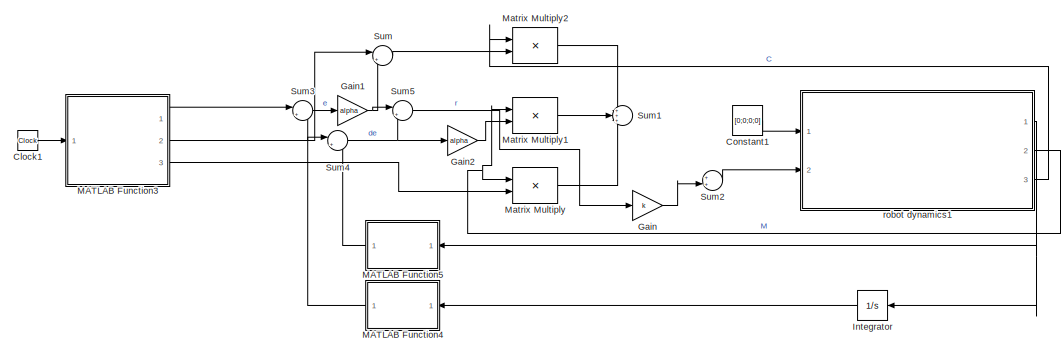
[diagram: root canvas - part 1/2, top left region]
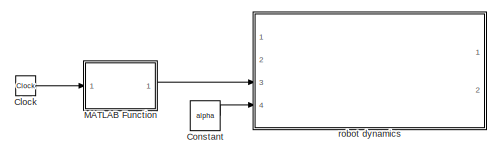
[diagram: root canvas - part 2/2, bottom right region]
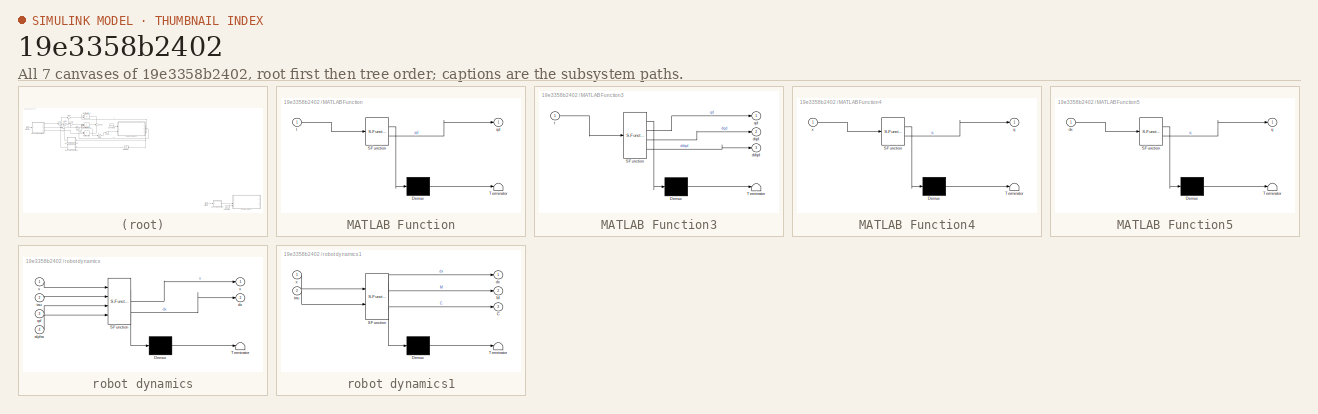
[diagram: thumbnail index - all 7 canvases of the model, root first then tree order]
MODEL slx_19e3358b2402
KIND model
CONFIG AbsTol = auto
CONFIG EnableMultiTasking = off
CONFIG FixedStep = 1e-3
CONFIG InitFcn = acm_init
CONFIG MaxStep = auto
CONFIG MinStep = auto
CONFIG RelTol = 1e-3
CONFIG SampleTimeConstraint = Unconstrained
CONFIG Solver = ode4
CONFIG SolverName = ode4
CONFIG StartTime = 0.0
CONFIG StopTime = 30
BLOCK [Clock] Clock
BLOCK [Clock] Clock1
  DisplayTime = on
BLOCK [Constant] Constant
  Value = alpha
BLOCK [Constant] Constant1
  Value = [0;0;0;0]
BLOCK [Gain] Gain
  Gain = k
BLOCK [Gain] Gain1
  Gain = alpha
BLOCK [Gain] Gain2
  Gain = alpha
BLOCK [Integrator] Integrator
  Ports = [1, 1]
BLOCK [SubSystem] MATLAB Function
  ErrorFcn = Stateflow.Translate.translate
  PermitHierarchicalResolution = ExplicitOnly
  Ports = [1, 1]
  RequestExecContextInheritance = off
  SFBlockType = MATLAB Function
  TreatAsAtomicUnit = on
BLOCK [Demux] MATLAB Function/ Demux 
  Outputs = 1
  Ports = [1, 1]
BLOCK [S-Function] MATLAB Function/ SFunction 
  EnableBusSupport = on
  FunctionName = sf_sfun
  PortCounts = [1 2]
  Ports = [1, 2]
  SFcnIsStateOwnerBlock = off
  SFunctionDeploymentMode = off
  Tag = Stateflow S-Function 2
BLOCK [Terminator] MATLAB Function/ Terminator 
BLOCK [Outport] MATLAB Function/qd
BLOCK [Inport] MATLAB Function/t
BLOCK [SubSystem] MATLAB Function3
  ErrorFcn = Stateflow.Translate.translate
  PermitHierarchicalResolution = ExplicitOnly
  Ports = [1, 3]
  RequestExecContextInheritance = off
  SFBlockType = MATLAB Function
  TreatAsAtomicUnit = on
BLOCK [Demux] MATLAB Function3/ Demux 
  Outputs = 1
  Ports = [1, 1]
BLOCK [S-Function] MATLAB Function3/ SFunction 
  EnableBusSupport = on
  FunctionName = sf_sfun
  PortCounts = [1 4]
  Ports = [1, 4]
  SFcnIsStateOwnerBlock = off
  SFunctionDeploymentMode = off
  Tag = Stateflow S-Function 5
BLOCK [Terminator] MATLAB Function3/ Terminator 
BLOCK [Outport] MATLAB Function3/ddqd
  Port = 3
BLOCK [Outport] MATLAB Function3/dqd
  Port = 2
BLOCK [Outport] MATLAB Function3/qd
BLOCK [Inport] MATLAB Function3/t
BLOCK [SubSystem] MATLAB Function4
  ErrorFcn = Stateflow.Translate.translate
  PermitHierarchicalResolution = ExplicitOnly
  Ports = [1, 1]
  RequestExecContextInheritance = off
  SFBlockType = MATLAB Function
  TreatAsAtomicUnit = on
BLOCK [Demux] MATLAB Function4/ Demux 
  Outputs = 1
  Ports = [1, 1]
BLOCK [S-Function] MATLAB Function4/ SFunction 
  EnableBusSupport = on
  FunctionName = sf_sfun
  PortCounts = [1 2]
  Ports = [1, 2]
  SFcnIsStateOwnerBlock = off
  SFunctionDeploymentMode = off
  Tag = Stateflow S-Function 6
BLOCK [Terminator] MATLAB Function4/ Terminator 
BLOCK [Outport] MATLAB Function4/q
BLOCK [Inport] MATLAB Function4/x
BLOCK [SubSystem] MATLAB Function5
  ErrorFcn = Stateflow.Translate.translate
  PermitHierarchicalResolution = ExplicitOnly
  Ports = [1, 1]
  RequestExecContextInheritance = off
  SFBlockType = MATLAB Function
  TreatAsAtomicUnit = on
BLOCK [Demux] MATLAB Function5/ Demux 
  Outputs = 1
  Ports = [1, 1]
BLOCK [S-Function] MATLAB Function5/ SFunction 
  EnableBusSupport = on
  FunctionName = sf_sfun
  PortCounts = [1 2]
  Ports = [1, 2]
  SFcnIsStateOwnerBlock = off
  SFunctionDeploymentMode = off
  Tag = Stateflow S-Function 7
BLOCK [Terminator] MATLAB Function5/ Terminator 
BLOCK [Inport] MATLAB Function5/dx
BLOCK [Outport] MATLAB Function5/q
BLOCK [Product] Matrix Multiply
  Multiplication = Matrix(*)
  Ports = [2, 1]
BLOCK [Product] Matrix Multiply1
  Multiplication = Matrix(*)
  Ports = [2, 1]
BLOCK [Product] Matrix Multiply2
  Multiplication = Matrix(*)
  Ports = [2, 1]
BLOCK [Sum] Sum
  Inputs = |++
  Ports = [2, 1]
BLOCK [Sum] Sum1
  Inputs = +++
  Ports = [3, 1]
BLOCK [Sum] Sum2
  Inputs = ++|
  Ports = [2, 1]
BLOCK [Sum] Sum3
  Inputs = |+-
  Ports = [2, 1]
BLOCK [Sum] Sum4
  Inputs = |+-
  Ports = [2, 1]
BLOCK [Sum] Sum5
  Inputs = |++
  Ports = [2, 1]
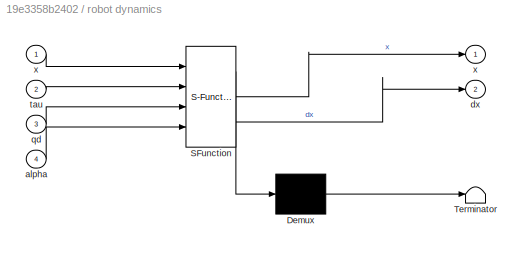
BLOCK [SubSystem] robot dynamics
  ErrorFcn = Stateflow.Translate.translate
  PermitHierarchicalResolution = ExplicitOnly
  Ports = [4, 2]
  RequestExecContextInheritance = off
  SFBlockType = MATLAB Function
  TreatAsAtomicUnit = on
BLOCK [Demux] robot dynamics/ Demux 
  Outputs = 1
  Ports = [1, 1]
BLOCK [S-Function] robot dynamics/ SFunction 
  EnableBusSupport = on
  FunctionName = sf_sfun
  Parameters = fd1,fd2,p1,p2,p3
  PortCounts = [4 3]
  Ports = [4, 3]
  SFcnIsStateOwnerBlock = off
  SFunctionDeploymentMode = off
  Tag = Stateflow S-Function 4
BLOCK [Terminator] robot dynamics/ Terminator 
BLOCK [Inport] robot dynamics/alpha
  Port = 4
BLOCK [Outport] robot dynamics/dx
  Port = 2
  VectorParamsAs1DForOutWhenUnconnected = off
BLOCK [Inport] robot dynamics/qd
  Port = 3
BLOCK [Inport] robot dynamics/tau
  Port = 2
BLOCK [Outport] robot dynamics/x
BLOCK [Inport] robot dynamics/x 
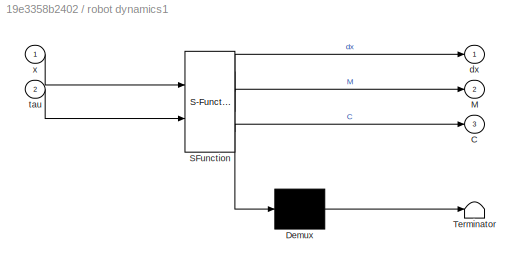
BLOCK [SubSystem] robot dynamics1
  ErrorFcn = Stateflow.Translate.translate
  PermitHierarchicalResolution = ExplicitOnly
  Ports = [2, 3]
  RequestExecContextInheritance = off
  SFBlockType = MATLAB Function
  TreatAsAtomicUnit = on
BLOCK [Demux] robot dynamics1/ Demux 
  Outputs = 1
  Ports = [1, 1]
BLOCK [S-Function] robot dynamics1/ SFunction 
  EnableBusSupport = on
  FunctionName = sf_sfun
  Parameters = fd1,fd2,p1,p2,p3
  PortCounts = [2 4]
  Ports = [2, 4]
  SFcnIsStateOwnerBlock = off
  SFunctionDeploymentMode = off
  Tag = Stateflow S-Function 8
BLOCK [Terminator] robot dynamics1/ Terminator 
BLOCK [Outport] robot dynamics1/C
  Port = 3
BLOCK [Outport] robot dynamics1/M
  Port = 2
BLOCK [Outport] robot dynamics1/dx
  VectorParamsAs1DForOutWhenUnconnected = off
BLOCK [Inport] robot dynamics1/tau
  Port = 2
BLOCK [Inport] robot dynamics1/x
LINE Clock1:1 -> MATLAB Function3:1
LINE Clock:1 -> MATLAB Function:1
LINE Constant1:1 -> robot dynamics1:1
LINE Constant:1 -> robot dynamics:4
NET Gain1:1 -> Sum5:1, Sum:2
LINE Gain2:1 -> Matrix Multiply1:2
LINE Gain:1 -> Sum2:2
LINE Integrator:1 -> MATLAB Function4:1
LINE MATLAB Function3:1 -> Sum3:1
NET MATLAB Function3:2 -> Sum4:1, Sum:1
LINE MATLAB Function3:3 -> Matrix Multiply:2
LINE MATLAB Function4:1 -> Sum3:2
LINE MATLAB Function5:1 -> Sum4:2
LINE MATLAB Function:1 -> robot dynamics:3
LINE Matrix Multiply1:1 -> Sum1:2
LINE Matrix Multiply2:1 -> Sum1:1
LINE Matrix Multiply:1 -> Sum1:3
LINE Sum2:1 -> robot dynamics1:2
LINE Sum3:1 -> Gain1:1
NET Sum4:1 -> Gain2:1, Sum5:2
LINE Sum5:1 -> Gain:1
LINE Sum:1 -> Matrix Multiply2:2
NET robot dynamics1:1 -> Integrator:1, MATLAB Function5:1
NET robot dynamics1:2 -> Matrix Multiply1:1, Matrix Multiply:1
LINE robot dynamics1:3 -> Matrix Multiply2:1
note: NET lines group one-source signal fan-out (src -> all destinations, sorted); 1:1 wires keep LINE
CHART MATLAB Function states=1 transitions=1
  STATE_LABEL 'eML_blk_kernel()'
  STATE_LABEL 'SCRIPT:\nfunction qd = desired_traj(t)\nqd=zeros(2,1);\nqd(1)=sin(3*t);\nqd(2)=2*cos(t);\nend\n'
CHART robot dynamics states=1 transitions=1
  STATE_LABEL 'eML_blk_kernel()'
  STATE_LABEL 'SCRIPT:\n% *************************************************************************\n%                        2-Link Manipulator Dynamics                      *\n% *************************************************************************\n\nfunction [x,dx] = fcn_twoLinkDynamics(x, tau, p1, p2, p3, fd1, fd2, qd, alpha)\n    q1  = x(1);\n    dq1 = x(2);\n    q2  = x(3);\n    dq2 = x(4);\n    \n    M      = ze...<+578ch>'
CHART MATLAB Function3 states=1 transitions=1
  STATE_LABEL 'eML_blk_kernel()'
  STATE_LABEL 'SCRIPT:\nfunction [qd,dqd,ddqd] = desired_traj(t)\nqd=zeros(2,1);\nqd(1)=sin(3*t);\nqd(2)=2*cos(t);\ndqd=zeros(2,1);\ndqd(1)=3*cos(3*t);\ndqd(2)=-2*sin(t);\nddqd=zeros(2,1);\nddqd(1)=-9*sin(3*t);\nddqd(2)=-2*cos(t);\nend\n'
CHART MATLAB Function4 states=1 transitions=1
  STATE_LABEL 'eML_blk_kernel()'
  STATE_LABEL 'SCRIPT:\nfunction q=takeq(x)\nq=zeros(2,1);\nq(1)=x(1);\nq(2)=x(3);\nend\n'
CHART MATLAB Function5 states=1 transitions=1
  STATE_LABEL 'eML_blk_kernel()'
  STATE_LABEL 'SCRIPT:\nfunction q=takedq(dx)\nq=zeros(2,1);\nq(1)=x(1);\nq(2)=x(3);\nend\n'
CHART robot dynamics1 states=1 transitions=1
  STATE_LABEL 'eML_blk_kernel()'
  STATE_LABEL 'SCRIPT:\n% *************************************************************************\n%                        2-Link Manipulator Dynamics                      *\n% *************************************************************************\n\nfunction [dx,M,C] = fcn_twoLinkDynamics(x, tau, p1, p2, p3, fd1, fd2)\n    q1  = x(1);\n    dq1 = x(2);\n    q2  = x(3);\n    dq2 = x(4);\n    \n    M      = zeros(2,2);...<+445ch>'
CHART  states=0 transitions=0
CHART  states=0 transitions=0
CHART  states=0 transitions=0
CHART  states=0 transitions=0
CHART  states=0 transitions=0
CHART  states=0 transitions=0
